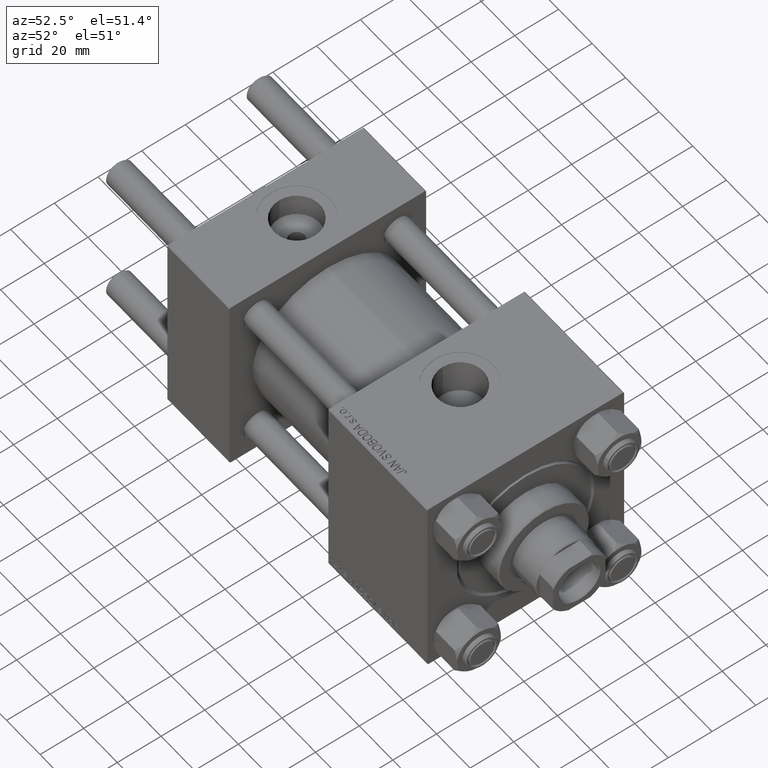
[diagram: clean part render]
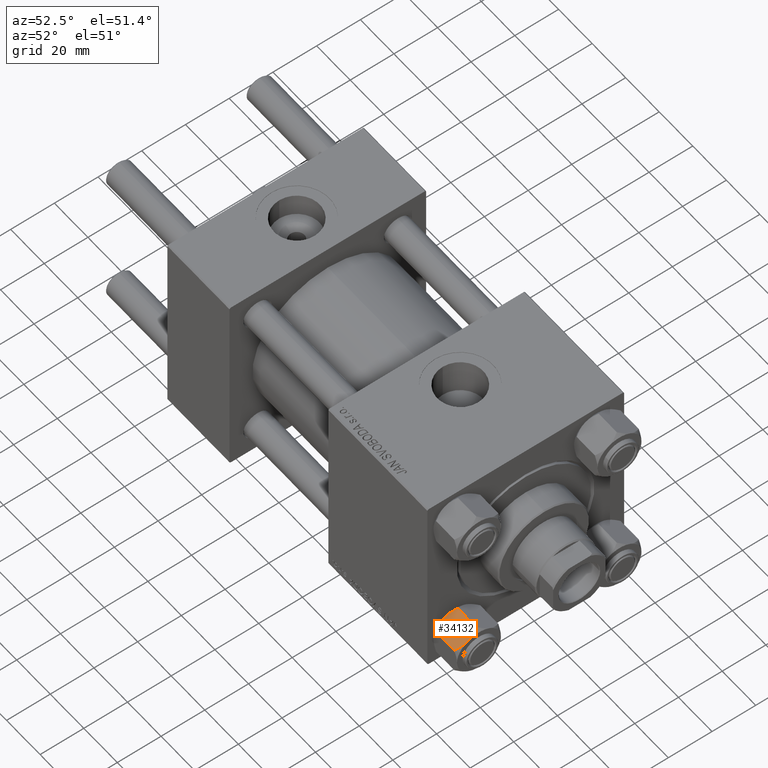
[diagram: same view with one face highlighted and labeled with its STEP entity id]
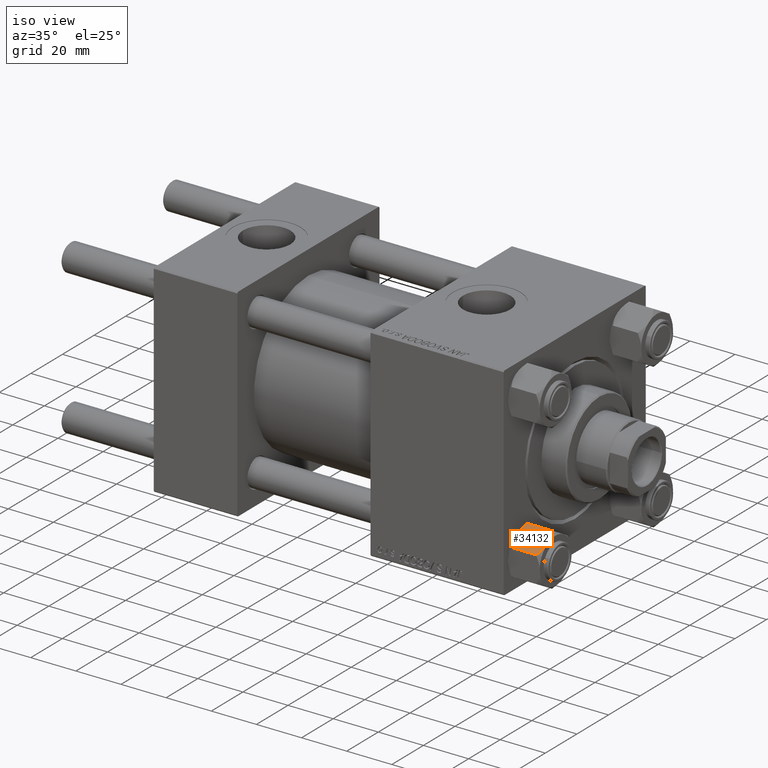
[diagram: same view with one face highlighted and labeled with its STEP entity id]
A machine part, auxiliary view. The second image highlights one B-rep face of the part: STEP entity #34132.
A second angle (iso view) of the same face is appended — the face is thin or edge-on in the first view.
In plain terms, the highlighted planar face has unit normal (0, 0.5, -0.866).
Its self-contained STEP definition (entity closure, byte-faithful):
#193 = CARTESIAN_POINT ( 'NONE',  ( 8.714999999999999858, -5.031607595987580339, -14.00000000000000000 ) ) ;
#221 = CARTESIAN_POINT ( 'NONE',  ( 9.974696630283192533, -2.849749030213785783, -13.69973261901325223 ) ) ;
#781 = ORIENTED_EDGE ( 'NONE', *, *, #3200, .F. ) ;
#1344 = CARTESIAN_POINT ( 'NONE',  ( 7.713000053756312369, -6.767122412062945180, -13.84547602999601068 ) ) ;
#1364 = CARTESIAN_POINT ( 'NONE',  ( 7.455303369716811623, -7.213466161761380668, -0.3002673809867457688 ) ) ;
#1607 = CARTESIAN_POINT ( 'NONE',  ( 8.714999999999999858, -5.031607595987580339, 0.000000000000000000 ) ) ;
#2623 = CARTESIAN_POINT ( 'NONE',  ( 10.69662495661650325, -1.599332489581326122, -0.7114554706434562670 ) ) ;
#2881 = ORIENTED_EDGE ( 'NONE', *, *, #3244, .F. ) ;
#3200 = EDGE_CURVE ( 'NONE', #25840, #47244, #22442, .T. ) ;
#3244 = EDGE_CURVE ( 'NONE', #47244, #18553, #31433, .T. ) ;
#3503 = AXIS2_PLACEMENT_3D ( 'NONE', #21396, #49272, #13580 ) ;
#5109 = VECTOR ( 'NONE', #34841, 1000.000000000000000 ) ;
#5146 = CARTESIAN_POINT ( 'NONE',  ( 6.265545725125289067, -9.274186850887373268, -1.101239082899541755 ) ) ;
#5847 = VERTEX_POINT ( 'NONE', #45549 ) ;
#6616 = DIRECTION ( 'NONE',  ( -0.000000000000000000, -0.000000000000000000, 1.000000000000000000 ) ) ;
#8611 = CARTESIAN_POINT ( 'NONE',  ( 11.61999999999999922, 7.247075248837498561E-15, -1.556784808024820999 ) ) ;
#8943 = CARTESIAN_POINT ( 'NONE',  ( 11.61999999999999922, 7.017202701192663836E-15, -14.00000000000000000 ) ) ;
#10266 = B_SPLINE_CURVE_WITH_KNOTS ( 'NONE', 3,
 ( #14808, #26412, #34976, #221, #37989, #37744, #19342, #19594 ),
 .UNSPECIFIED., .F., .F.,
 ( 4, 2, 2, 4 ),
 ( 2.544312114905220024E-07, 0.003011550106433536454, 0.004517197944044560980, 0.006022845781655584638 ),
 .UNSPECIFIED. ) ;
#10850 = ORIENTED_EDGE ( 'NONE', *, *, #22538, .T. ) ;
#11000 = EDGE_LOOP ( 'NONE', ( #26565, #10850, #2881, #781, #47639, #23322 ) ) ;
#11202 = VECTOR ( 'NONE', #6616, 1000.000000000000000 ) ;
#11753 = CARTESIAN_POINT ( 'NONE',  ( 6.265018354709780191, -9.275100283241444643, -12.89823354668503796 ) ) ;
#11771 = CARTESIAN_POINT ( 'NONE',  ( 8.714999999999999858, -5.031607595987580339, -14.00000000000000000 ) ) ;
#11908 = EDGE_CURVE ( 'NONE', #5847, #25840, #22486, .T. ) ;
#12319 = VERTEX_POINT ( 'NONE', #14241 ) ;
#13580 = DIRECTION ( 'NONE',  ( -0.4999999999999992784, -0.8660254037844390407, 0.000000000000000000 ) ) ;
#14241 = CARTESIAN_POINT ( 'NONE',  ( 11.61999999999999922, 7.035126978385350964E-15, -12.44321519197517922 ) ) ;
#14808 = CARTESIAN_POINT ( 'NONE',  ( 11.61999999999999922, 7.035126978385350964E-15, -12.44321519197517922 ) ) ;
#15527 = CARTESIAN_POINT ( 'NONE',  ( 8.209704053696578185, -5.906805847843720869, -14.00000000000000178 ) ) ;
#16456 = CARTESIAN_POINT ( 'NONE',  ( 6.731401448974994928, -8.467301068182910839, -0.7141438259524746091 ) ) ;
#18040 = EDGE_CURVE ( 'NONE', #12319, #44747, #10266, .T. ) ;
#18232 = CARTESIAN_POINT ( 'NONE',  ( 5.810000000000005826, -10.06321519197517489, -1.556784808024824107 ) ) ;
#18550 = PLANE ( 'NONE',  #3503 ) ;
#18553 = VERTEX_POINT ( 'NONE', #8611 ) ;
#19342 = CARTESIAN_POINT ( 'NONE',  ( 8.969430103550388722, -4.590921729663307360, -13.99999999999999822 ) ) ;
#19594 = CARTESIAN_POINT ( 'NONE',  ( 8.714999999999999858, -5.031607595987580339, -14.00000000000000000 ) ) ;
#20729 = CARTESIAN_POINT ( 'NONE',  ( 5.810000000000005826, -10.06321519197517489, -1.556784808024824107 ) ) ;
#21396 = CARTESIAN_POINT ( 'NONE',  ( 11.61999999999999922, 7.017202701192663836E-15, -14.00000000000000000 ) ) ;
#22442 = B_SPLINE_CURVE_WITH_KNOTS ( 'NONE', 3,
 ( #20729, #5146, #16456, #1364, #32066, #36111, #39881, #1607 ),
 .UNSPECIFIED., .F., .F.,
 ( 4, 2, 2, 4 ),
 ( 2.544312114906334931E-07, 0.003011550106433540791, 0.004517197944044565316, 0.006022845781655591577 ),
 .UNSPECIFIED. ) ;
#22486 = LINE ( 'NONE', #37853, #5109 ) ;
#22538 = EDGE_CURVE ( 'NONE', #12319, #18553, #24303, .T. ) ;
#23322 = ORIENTED_EDGE ( 'NONE', *, *, #23851, .F. ) ;
#23851 = EDGE_CURVE ( 'NONE', #44747, #5847, #37288, .T. ) ;
#24303 = LINE ( 'NONE', #8943, #11202 ) ;
#25522 = CARTESIAN_POINT ( 'NONE',  ( 11.61999999999999922, 7.247075248837498561E-15, -1.556784808024820999 ) ) ;
#25840 = VERTEX_POINT ( 'NONE', #18232 ) ;
#26412 = CARTESIAN_POINT ( 'NONE',  ( 11.16445427487471598, -0.7890283410877895198, -12.89876091710045891 ) ) ;
#26565 = ORIENTED_EDGE ( 'NONE', *, *, #18040, .F. ) ;
#27782 = CARTESIAN_POINT ( 'NONE',  ( 5.810000000000006715, -10.06321519197517489, -12.44321519197517745 ) ) ;
#30904 = CARTESIAN_POINT ( 'NONE',  ( 6.733375043383501790, -8.463882702393838997, -13.28854452935654074 ) ) ;
#31433 = B_SPLINE_CURVE_WITH_KNOTS ( 'NONE', 3,
 ( #40122, #37112, #36862, #2623, #41135, #25522 ),
 .UNSPECIFIED., .F., .F.,
 ( 4, 2, 4 ),
 ( 0.006022845781655591577, 0.009013049135303635023, 0.01200325248895168020 ),
 .UNSPECIFIED. ) ;
#32066 = CARTESIAN_POINT ( 'NONE',  ( 7.700834831386349499, -6.788193195293088955, -0.1903979688073487719 ) ) ;
#34132 = ADVANCED_FACE ( 'NONE', ( #45759 ), #18550, .F. ) ;
#34841 = DIRECTION ( 'NONE',  ( -0.000000000000000000, -0.000000000000000000, 1.000000000000000000 ) ) ;
#34976 = CARTESIAN_POINT ( 'NONE',  ( 10.69859855102501456, -1.595914123792257389, -13.28585617404752917 ) ) ;
#36111 = CARTESIAN_POINT ( 'NONE',  ( 8.202333004087906332, -5.919572880271047666, -0.03994118060691484451 ) ) ;
#36862 = CARTESIAN_POINT ( 'NONE',  ( 9.716999946243694453, -3.296092779912219495, -0.1545239700039907904 ) ) ;
#37112 = CARTESIAN_POINT ( 'NONE',  ( 9.220295946303432189, -4.156409344131445138, -5.153348451095161685E-15 ) ) ;
#37288 = B_SPLINE_CURVE_WITH_KNOTS ( 'NONE', 3,
 ( #193, #15527, #1344, #30904, #11753, #27782 ),
 .UNSPECIFIED., .F., .F.,
 ( 4, 2, 4 ),
 ( 0.006022845781655584638, 0.009013049135303633289, 0.01200325248895168020 ),
 .UNSPECIFIED. ) ;
#37744 = CARTESIAN_POINT ( 'NONE',  ( 9.227666995912102266, -4.143642311704116565, -13.96005881939308324 ) ) ;
#37853 = CARTESIAN_POINT ( 'NONE',  ( 5.810000000000005826, -10.06321519197517489, -14.00000000000000000 ) ) ;
#37989 = CARTESIAN_POINT ( 'NONE',  ( 9.729165168613659986, -3.275021996682075276, -13.80960203119265195 ) ) ;
#39881 = CARTESIAN_POINT ( 'NONE',  ( 8.460569896449625205, -5.472293462311858647, -5.260074602449206683E-15 ) ) ;
#39926 = CARTESIAN_POINT ( 'NONE',  ( 8.714999999999999858, -5.031607595987580339, 0.000000000000000000 ) ) ;
#40122 = CARTESIAN_POINT ( 'NONE',  ( 8.714999999999999858, -5.031607595987580339, 0.000000000000000000 ) ) ;
#41135 = CARTESIAN_POINT ( 'NONE',  ( 11.16498164529022219, -0.7881149087337221415, -1.101766453314959815 ) ) ;
#44747 = VERTEX_POINT ( 'NONE', #11771 ) ;
#45549 = CARTESIAN_POINT ( 'NONE',  ( 5.810000000000006715, -10.06321519197517489, -12.44321519197517745 ) ) ;
#45759 = FACE_OUTER_BOUND ( 'NONE', #11000, .T. ) ;
#47244 = VERTEX_POINT ( 'NONE', #39926 ) ;
#47639 = ORIENTED_EDGE ( 'NONE', *, *, #11908, .F. ) ;
#49272 = DIRECTION ( 'NONE',  ( -0.8660254037844390407, 0.4999999999999992784, 0.000000000000000000 ) ) ;